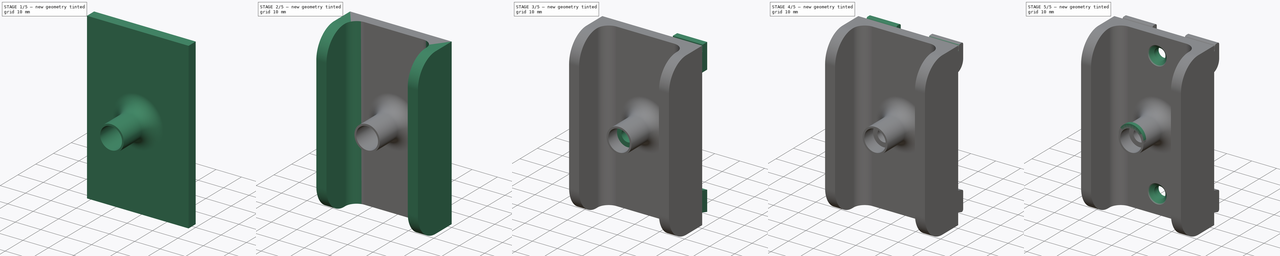
[diagram: build sequence overview — one tinted view per stage of 5, left to right]
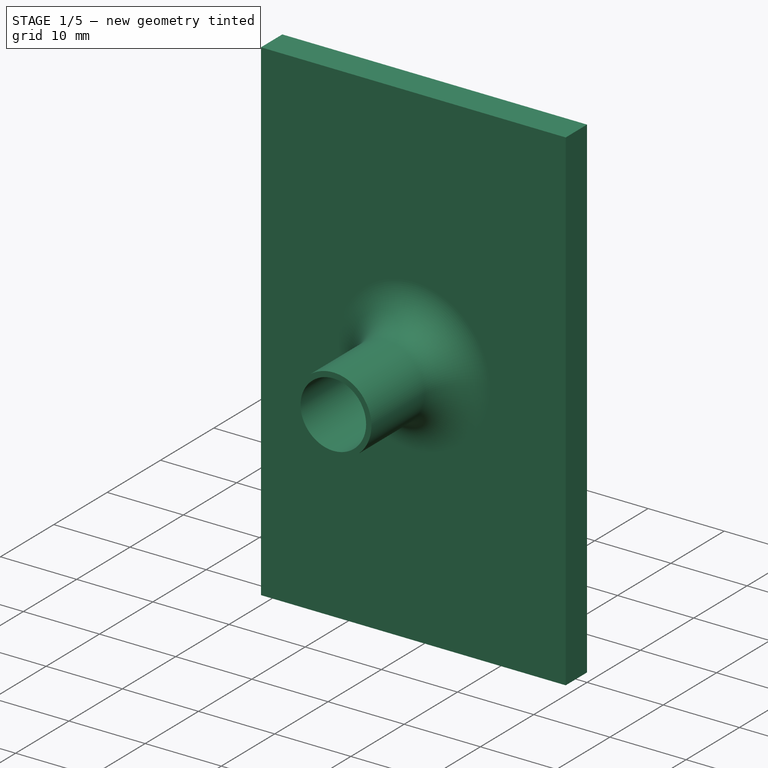
[diagram: stage 1 of 5 — iso view after this stage's code; geometry added in this stage tinted green]
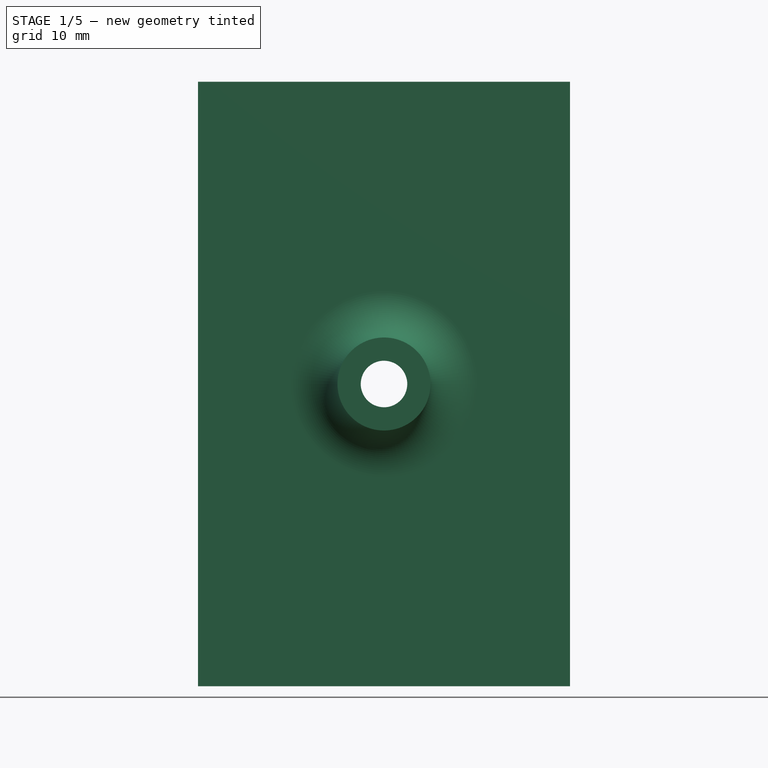
[diagram: stage 1 of 5 — front view after this stage's code; geometry added in this stage tinted green]
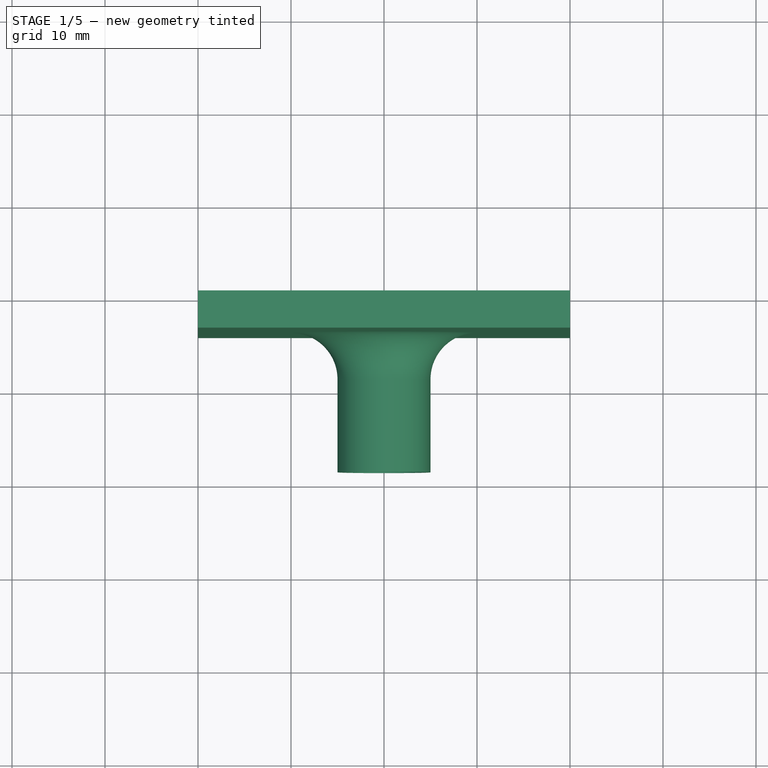
[diagram: stage 1 of 5 — top view after this stage's code; geometry added in this stage tinted green]
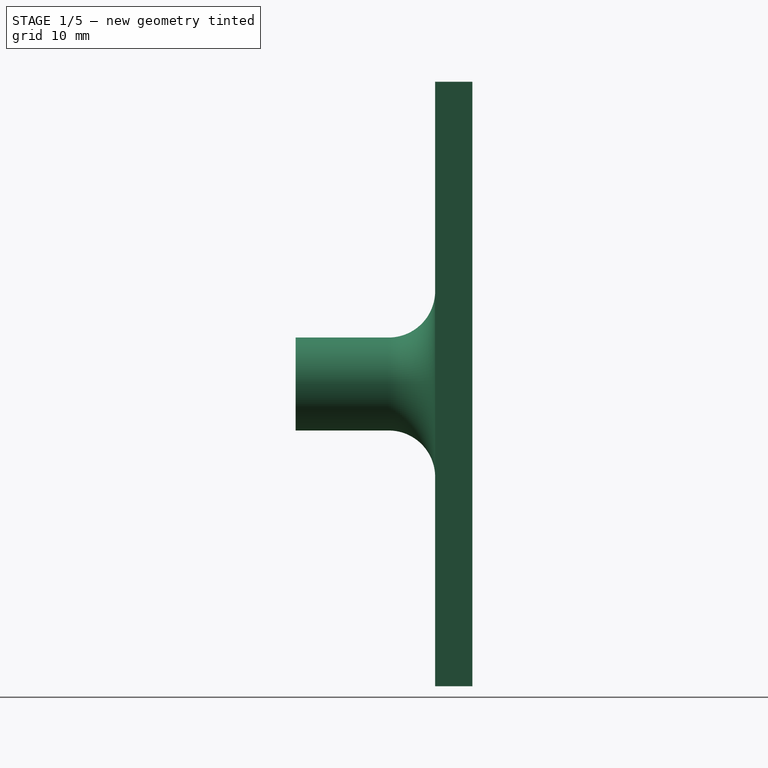
[diagram: stage 1 of 5 — right view after this stage's code; geometry added in this stage tinted green]
FCSTD DOCUMENT  (FreeCAD 1.0R39109 (Git))
Label: PIM_cable_holder
License: All rights reserved
LicenseURL: https://en.wikipedia.org/wiki/All_rights_reserved
objects: Sketcher::SketchObject×9, PartDesign::Pad×9, PartDesign::Fillet×5, PartDesign::Body×2, PartDesign::Mirrored×2, PartDesign::SubShapeBinder×1, PartDesign::Pocket×1, PartDesign::Chamfer×1
note: 73 computed .brp shape members not serialized (recipe doc carries the construction recipe); baked Part::Feature solids carry a one-line shape summary decoded from their .brp

FEATURE [Sketcher::SketchObject] Sketch
  ArcFitTolerance = 1e-06
  AttachmentSupport = -> [XZ_Plane]
  FullyConstrained = true
  MakeInternals = false
  MapMode = 5
  Placement = pos=(0,0,0) rot=(1,0,0;1.5708rad)
  sketch-geometry (54):
    g0: Circle CenterX=0 CenterY=-1e-16 CenterZ=0 NormalX=0 NormalY=0 NormalZ=1 AngleXU=0 Radius=2.25
    g1: Circle CenterX=0 CenterY=-25 CenterZ=0 NormalX=0 NormalY=0 NormalZ=1 AngleXU=0 Radius=2.25
    g2: Circle CenterX=0 CenterY=25 CenterZ=0 NormalX=0 NormalY=0 NormalZ=1 AngleXU=0 Radius=2.25
    g3: LineSegment [constr] StartX=-12.5 StartY=-12.5 StartZ=0 EndX=12.5 EndY=-12.5 EndZ=0
    g4: LineSegment [constr] StartX=12.5 StartY=-12.5 StartZ=0 EndX=12.5 EndY=12.5 EndZ=0
    g5: LineSegment [constr] StartX=12.5 StartY=12.5 StartZ=0 EndX=-12.5 EndY=12.5 EndZ=0
    g6: LineSegment [constr] StartX=-12.5 StartY=12.5 StartZ=0 EndX=-12.5 EndY=-12.5 EndZ=0
    g7: GeomPoint [constr] X=0 Y=-1e-16 Z=0
    g8: LineSegment [constr] StartX=-12.5 StartY=-25 StartZ=0 EndX=12.5 EndY=-25 EndZ=0
    g9: LineSegment [constr] StartX=12.5 StartY=-25 StartZ=0 EndX=12.5 EndY=25 EndZ=0
    g10: LineSegment [constr] StartX=12.5 StartY=25 StartZ=0 EndX=-12.5 EndY=25 EndZ=0
    g11: LineSegment [constr] StartX=-12.5 StartY=25 StartZ=0 EndX=-12.5 EndY=-25 EndZ=0
    g12: GeomPoint [constr] X=0 Y=-1e-16 Z=0
    g13: LineSegment StartX=-19 StartY=20.5 StartZ=0 EndX=-6 EndY=20.5 EndZ=0
    g14: LineSegment StartX=-6 StartY=20.5 StartZ=0 EndX=-6 EndY=29.5 EndZ=0
    g15: LineSegment StartX=-6 StartY=29.5 StartZ=0 EndX=-19 EndY=29.5 EndZ=0
    g16: LineSegment StartX=-19 StartY=29.5 StartZ=0 EndX=-19 EndY=20.5 EndZ=0
    g17: GeomPoint [constr] X=-12.5 Y=25 Z=0
    g18: LineSegment StartX=-19 StartY=-29.5 StartZ=0 EndX=-6 EndY=-29.5 EndZ=0
    g19: LineSegment StartX=-6 StartY=-29.5 StartZ=0 EndX=-6 EndY=-20.5 EndZ=0
    g20: LineSegment StartX=-6 StartY=-20.5 StartZ=0 EndX=-19 EndY=-20.5 EndZ=0
    g21: LineSegment StartX=-19 StartY=-20.5 StartZ=0 EndX=-19 EndY=-29.5 EndZ=0
    g22: GeomPoint [constr] X=-12.5 Y=-25 Z=0
    g23: LineSegment StartX=6 StartY=-29.5 StartZ=0 EndX=19 EndY=-29.5 EndZ=0
    g24: LineSegment StartX=19 StartY=-29.5 StartZ=0 EndX=19 EndY=-20.5 EndZ=0
    g25: LineSegment StartX=19 StartY=-20.5 StartZ=0 EndX=6 EndY=-20.5 EndZ=0
    g26: LineSegment StartX=6 StartY=-20.5 StartZ=0 EndX=6 EndY=-29.5 EndZ=0
    g27: GeomPoint [constr] X=12.5 Y=-25 Z=0
    g28: LineSegment StartX=6 StartY=29.5 StartZ=0 EndX=6 EndY=20.5 EndZ=0
    g29: LineSegment StartX=6 StartY=20.5 StartZ=0 EndX=19 EndY=20.5 EndZ=0
    g30: LineSegment StartX=19 StartY=20.5 StartZ=0 EndX=19 EndY=29.5 EndZ=0
    g31: LineSegment StartX=19 StartY=29.5 StartZ=0 EndX=6 EndY=29.5 EndZ=0
    g32: GeomPoint [constr] X=12.5 Y=25 Z=0
    g33: GeomPoint X=-12.5 Y=0 Z=0
    g34: GeomPoint X=12.5 Y=0 Z=0
    g35: LineSegment StartX=-17 StartY=6.5 StartZ=0 EndX=-17 EndY=-6.5 EndZ=0
    g36: LineSegment StartX=-17 StartY=-6.5 StartZ=0 EndX=-8 EndY=-6.5 EndZ=0
    g37: LineSegment StartX=-8 StartY=-6.5 StartZ=0 EndX=-8 EndY=6.5 EndZ=0
    g38: LineSegment StartX=-8 StartY=6.5 StartZ=0 EndX=-17 EndY=6.5 EndZ=0
    g39: GeomPoint [constr] X=-12.5 Y=0 Z=0
    g40: LineSegment StartX=8 StartY=6.5 StartZ=0 EndX=8 EndY=-6.5 EndZ=0
    g41: LineSegment StartX=8 StartY=-6.5 StartZ=0 EndX=17 EndY=-6.5 EndZ=0
    g42: LineSegment StartX=17 StartY=-6.5 StartZ=0 EndX=17 EndY=6.5 EndZ=0
    g43: LineSegment StartX=17 StartY=6.5 StartZ=0 EndX=8 EndY=6.5 EndZ=0
    g44: GeomPoint [constr] X=12.5 Y=0 Z=0
    g45: Circle CenterX=-12.5 CenterY=12.5 CenterZ=0 NormalX=0 NormalY=0 NormalZ=1 AngleXU=0 Radius=2.25
    g46: Circle CenterX=12.5 CenterY=12.5 CenterZ=0 NormalX=0 NormalY=0 NormalZ=1 AngleXU=0 Radius=2.25
    g47: Circle CenterX=12.5 CenterY=-12.5 CenterZ=0 NormalX=0 NormalY=0 NormalZ=1 AngleXU=0 Radius=2.25
    g48: Circle CenterX=-12.5 CenterY=-12.5 CenterZ=0 NormalX=0 NormalY=0 NormalZ=1 AngleXU=0 Radius=2.25
    g49: LineSegment StartX=-75 StartY=-35 StartZ=0 EndX=75 EndY=-35 EndZ=0
    g50: LineSegment StartX=75 StartY=-35 StartZ=0 EndX=75 EndY=35 EndZ=0
    g51: LineSegment StartX=75 StartY=35 StartZ=0 EndX=-75 EndY=35 EndZ=0
    g52: LineSegment StartX=-75 StartY=35 StartZ=0 EndX=-75 EndY=-35 EndZ=0
    g53: GeomPoint [constr] X=0 Y=-1e-16 Z=0
  constraints (128):
    c: Diameter(g0) = 4.5
    c: Coincident(g0,g-1)
    c: PointOnObject(g1,g-2)
    c: PointOnObject(g2,g-2)
    c: Coincident(g3,g4)
    c: Coincident(g4,g5)
    c: Coincident(g5,g6)
    c: Coincident(g6,g3)
    c: Horizontal(g3)
    c: Horizontal(g5)
    c: Vertical(g4)
    c: Vertical(g6)
    c: Symmetric(g5,g3,g7)
    c: Coincident(g7,g0)
    c: Coincident(g8,g9)
    c: Coincident(g9,g10)
    c: Coincident(g10,g11)
    c: Coincident(g11,g8)
    c: Horizontal(g8)
    c: Horizontal(g10)
    c: Vertical(g9)
    c: Vertical(g11)
    c: Symmetric(g10,g8,g12)
    c: Coincident(g12,g0)
    c: Coincident(g13,g14)
    c: Coincident(g14,g15)
    c: Coincident(g15,g16)
    c: Coincident(g16,g13)
    c: Horizontal(g13)
    c: Horizontal(g15)
    c: Vertical(g14)
    c: Vertical(g16)
    c: Symmetric(g15,g13,g17)
    c: Distance(g14,g16) = 13
    c: Distance(g13,g15) = 9
    c: Coincident(g17,g10)
    c: Coincident(g18,g19)
    c: Coincident(g19,g20)
    c: Coincident(g20,g21)
    c: Coincident(g21,g18)
    c: Horizontal(g18)
    c: Horizontal(g20)
    c: Vertical(g19)
    c: Vertical(g21)
    c: Symmetric(g20,g18,g22)
    c: Coincident(g22,g8)
    c: Coincident(g23,g24)
    c: Coincident(g24,g25)
    c: Coincident(g25,g26)
    c: Coincident(g26,g23)
    c: Horizontal(g23)
    c: Horizontal(g25)
    c: Vertical(g24)
    c: Vertical(g26)
    c: Symmetric(g25,g23,g27)
    c: Coincident(g27,g8)
    c: Coincident(g28,g29)
    c: Coincident(g29,g30)
    c: Coincident(g30,g31)
    c: Coincident(g31,g28)
    c: Vertical(g28)
    c: Vertical(g30)
    c: Horizontal(g29)
    c: Horizontal(g31)
    c: Symmetric(g30,g28,g32)
    c: Coincident(g32,g9)
    c: PointOnObject(g33,g11)
    c: PointOnObject(g34,g9)
    c: PointOnObject(g34,g-1)
    c: PointOnObject(g33,g-1)
    c: Coincident(g35,g36)
    c: Coincident(g36,g37)
    c: Coincident(g37,g38)
    c: Coincident(g38,g35)
    c: Vertical(g35)
    c: Vertical(g37)
    c: Horizontal(g36)
    c: Horizontal(g38)
    c: Symmetric(g37,g35,g39)
    c: Coincident(g39,g33)
    c: Coincident(g40,g41)
    c: Coincident(g41,g42)
    c: Coincident(g42,g43)
    c: Coincident(g43,g40)
    c: Vertical(g40)
    c: Vertical(g42)
    c: Horizontal(g41)
    c: Horizontal(g43)
    c: Symmetric(g42,g40,g44)
    c: Coincident(g44,g34)
    c: PointOnObject(g5,g11)
    c: PointOnObject(g1,g8)
    c: PointOnObject(g2,g10)
    c: Coincident(g45,g5)
    c: Coincident(g46,g4)
    c: Coincident(g47,g3)
    c: Coincident(g48,g3)
    c: Equal(g1,g48)
    c: Equal(g48,g45)
    c: Equal(g45,g46)
    c: Equal(g46,g47)
    c: Equal(g47,g2)
    c: Equal(g2,g0)
    c: Equal(g15,g31)
    c: Equal(g31,g25)
    c: Equal(g25,g20)
    c: Equal(g20,g37)
    c: Equal(g37,g40)
    c: Equal(g16,g38)
    c: Equal(g38,g21)
    c: Equal(g21,g26)
    c: Equal(g26,g41)
    c: Equal(g41,g30)
    c: DistanceY(g18,g15) = 59
    c: DistanceX(g15,g30) = 38
    c: DistanceY(g3,g4) = 25
    c: Coincident(g49,g50)
    c: Coincident(g50,g51)
    c: Coincident(g51,g52)
    c: Coincident(g52,g49)
    c: Horizontal(g49)
    c: Horizontal(g51)
    c: Vertical(g50)
    c: Vertical(g52)
    c: Symmetric(g51,g49,g53)
    c: Distance(g50,g52) = 150
    c: Distance(g49,g51) = 70
    c: Coincident(g53,g0)
FEATURE [PartDesign::Pad] Pad
  Direction = (0,-1,2e-16)
  Length = 2
  Length2 = 10
  Placement = pos=(0,0,0) rot=(1,0,0;1.5708rad)
  Profile = -> Sketch
  ReferenceAxis = -> Sketch [N_Axis]
  Refine = true
  Reversed = true
  Suppressed = false
  Type = 0
FEATURE [PartDesign::Body] Body  label="baseplate"
  AllowCompound = false
  Group = -> [Sketch,Pad]
  Origin = -> Origin
  Tip = -> Pad
FEATURE [PartDesign::SubShapeBinder] Binder
  BindCopyOnChange = 0
  BindMode = 0
  ClaimChildren = false
  Context = -> Body001 [Binder.]
  Fuse = false
  MakeFace = true
  OffsetFill = false
  OffsetIntersection = false
  OffsetJoinType = 0
  OffsetOpenResult = false
  PartialLoad = false
  Refine = true
  Relative = true
  Support = -> [Body[Pad.Face36]]
  _Version = 2
FEATURE [Sketcher::SketchObject] Sketch001
  ArcFitTolerance = 1e-06
  AttachmentSupport = -> [Binder]
  ExternalGeometry = -> [Binder]
  FullyConstrained = true
  MakeInternals = false
  MapMode = 5
  Placement = pos=(0,0,0) rot=(1,0,0;1.5708rad)
  sketch-geometry (6):
    g0: LineSegment StartX=-20 StartY=-32.5 StartZ=0 EndX=20 EndY=-32.5 EndZ=0
    g1: LineSegment StartX=20 StartY=-32.5 StartZ=0 EndX=20 EndY=32.5 EndZ=0
    g2: LineSegment StartX=20 StartY=32.5 StartZ=0 EndX=-20 EndY=32.5 EndZ=0
    g3: LineSegment StartX=-20 StartY=32.5 StartZ=0 EndX=-20 EndY=-32.5 EndZ=0
    g4: GeomPoint [constr] X=0 Y=0 Z=0
    g5: Circle CenterX=0 CenterY=0 CenterZ=0 NormalX=0 NormalY=0 NormalZ=1 AngleXU=0 Radius=2.5
  constraints (14):
    c: Coincident(g0,g1)
    c: Coincident(g1,g2)
    c: Coincident(g2,g3)
    c: Coincident(g3,g0)
    c: Horizontal(g0)
    c: Horizontal(g2)
    c: Vertical(g1)
    c: Vertical(g3)
    c: Symmetric(g2,g0,g4)
    c: Distance(g1,g3) = 40
    c: Distance(g0,g2) = 65
    c: Coincident(g4,g-1)
    c: Diameter(g5) = 5
    c: Coincident(g5,g4)
FEATURE [PartDesign::Pad] Pad001
  Direction = (0,-1,2e-16)
  Length = 4
  Length2 = 10
  Profile = -> Sketch001
  ReferenceAxis = -> Sketch001 [N_Axis]
  Refine = true
  Suppressed = false
  Type = 0
FEATURE [Sketcher::SketchObject] Sketch003
  ArcFitTolerance = 1e-06
  AttachmentSupport = -> [Pad001]
  FullyConstrained = true
  MakeInternals = false
  MapMode = 5
  Placement = pos=(0,-4,0) rot=(1,0,0;1.5708rad)
  sketch-geometry (2):
    g0: Circle CenterX=0 CenterY=0 CenterZ=0 NormalX=0 NormalY=0 NormalZ=1 AngleXU=0 Radius=4.3
    g1: Circle CenterX=0 CenterY=0 CenterZ=0 NormalX=0 NormalY=0 NormalZ=1 AngleXU=0 Radius=5
  constraints (4):
    c: Diameter(g0) = 8.6
    c: Coincident(g0,g-1)
    c: Diameter(g1) = 10
    c: Coincident(g1,g0)
FEATURE [PartDesign::Pad] Pad002
  BaseFeature = -> Pad001
  Direction = (0,-1,2e-16)
  Length = 15
  Length2 = 10
  Profile = -> Sketch003
  ReferenceAxis = -> Sketch003 [N_Axis]
  Refine = true
  Suppressed = false
  Type = 0
FEATURE [PartDesign::Fillet] Fillet
  Base = -> Pad002 [Edge14]
  BaseFeature = -> Pad002
  Radius = 5
  Refine = true
  SupportTransform = false
  Suppressed = false
  UseAllEdges = false
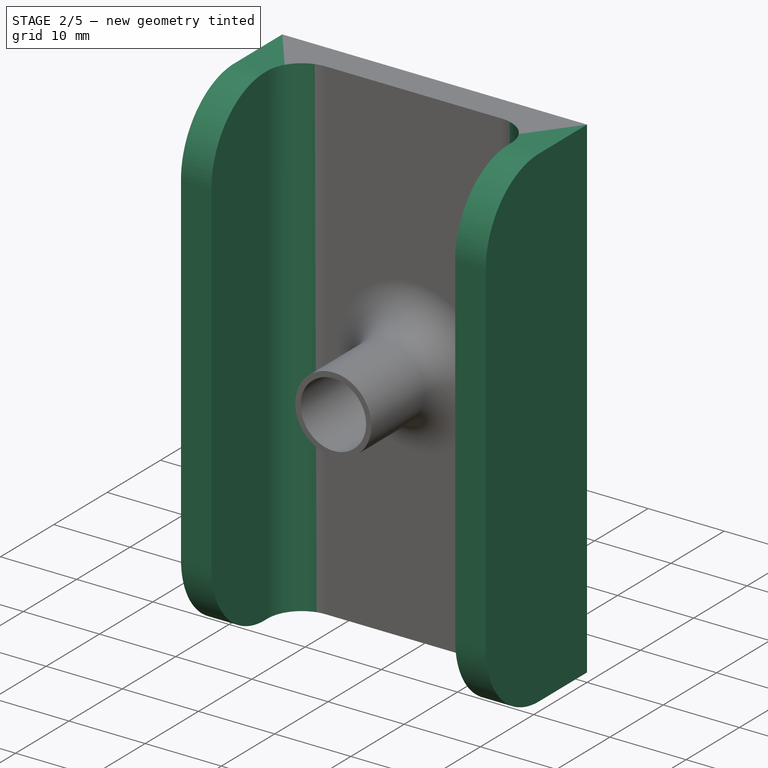
[diagram: stage 2 of 5 — iso view after this stage's code; geometry added in this stage tinted green]
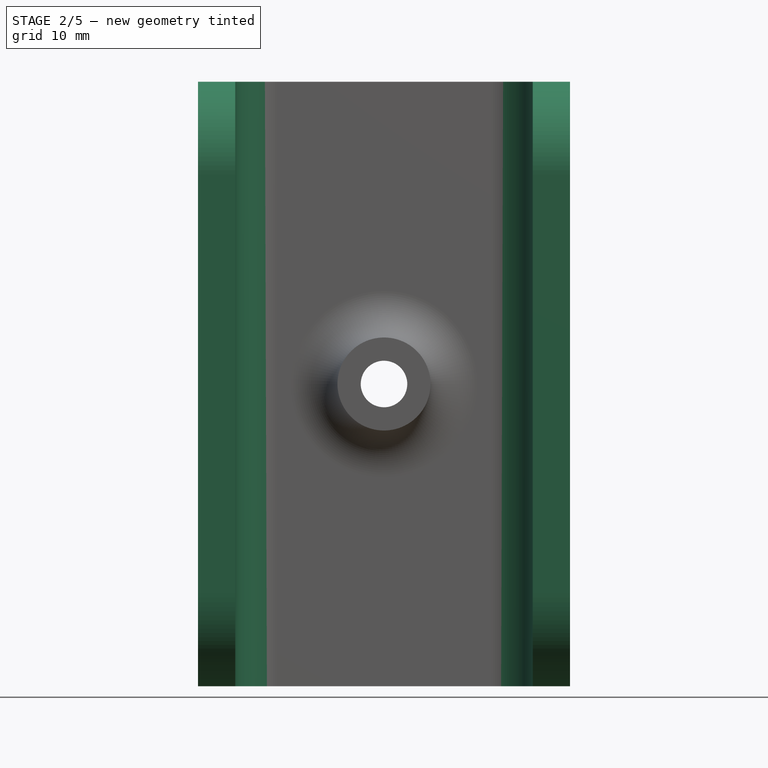
[diagram: stage 2 of 5 — front view after this stage's code; geometry added in this stage tinted green]
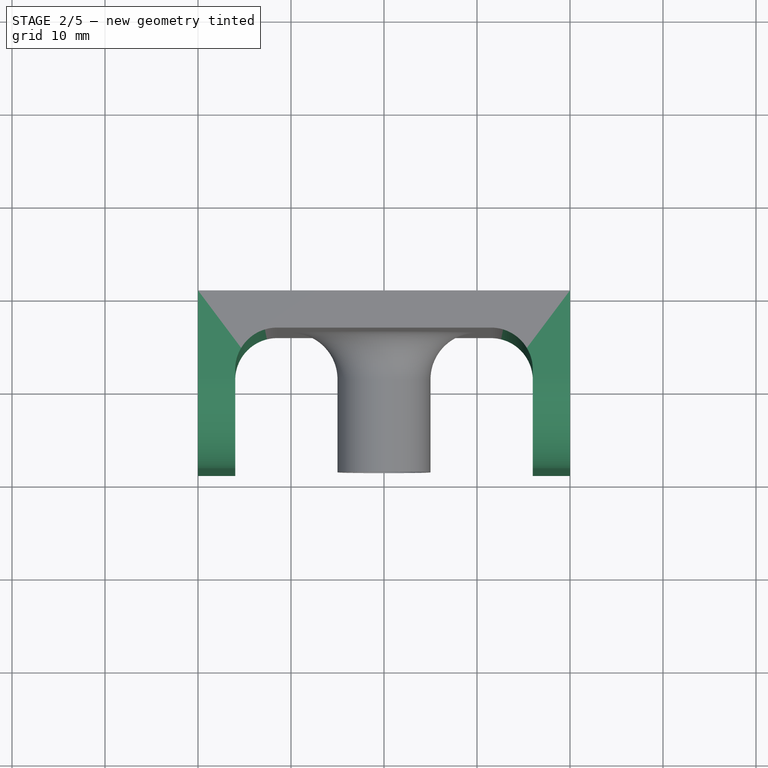
[diagram: stage 2 of 5 — top view after this stage's code; geometry added in this stage tinted green]
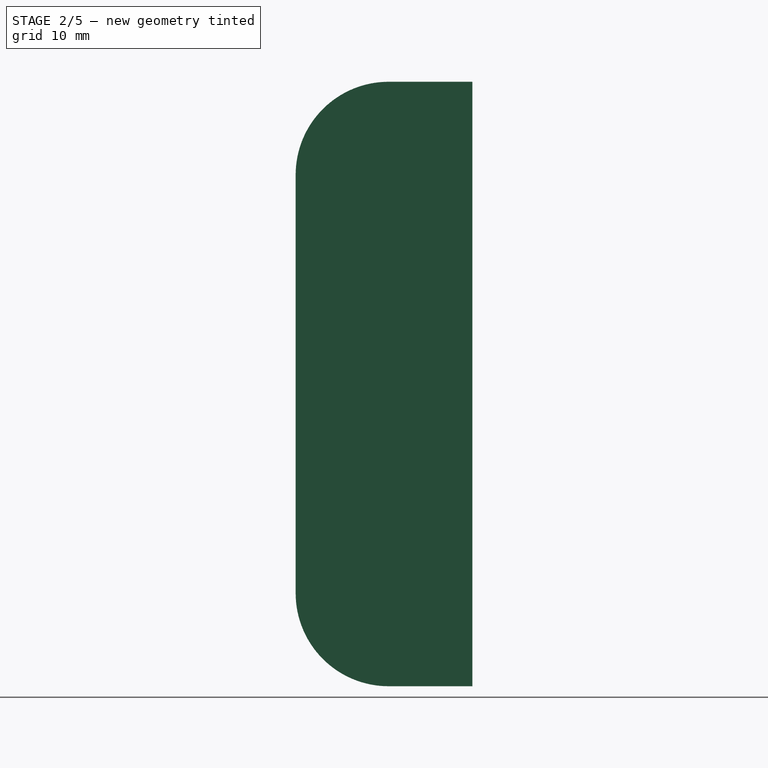
[diagram: stage 2 of 5 — right view after this stage's code; geometry added in this stage tinted green]
FEATURE [Sketcher::SketchObject] Sketch004
  ArcFitTolerance = 1e-06
  AttachmentSupport = -> [Fillet]
  ExternalGeometry = -> [Fillet]
  FullyConstrained = true
  MakeInternals = false
  MapMode = 5
  Placement = pos=(0,-4,0) rot=(1,0,0;1.5708rad)
  sketch-geometry (8):
    g0: LineSegment StartX=-20 StartY=32.5 StartZ=0 EndX=-20 EndY=-32.5 EndZ=0
    g1: LineSegment StartX=-20 StartY=-32.5 StartZ=0 EndX=-16 EndY=-32.5 EndZ=0
    g2: LineSegment StartX=-16 StartY=-32.5 StartZ=0 EndX=-16 EndY=32.5 EndZ=0
    g3: LineSegment StartX=-16 StartY=32.5 StartZ=0 EndX=-20 EndY=32.5 EndZ=0
    g4: LineSegment StartX=20 StartY=32.5 StartZ=0 EndX=16 EndY=32.5 EndZ=0
    g5: LineSegment StartX=16 StartY=32.5 StartZ=0 EndX=16 EndY=-32.5 EndZ=0
    g6: LineSegment StartX=16 StartY=-32.5 StartZ=0 EndX=20 EndY=-32.5 EndZ=0
    g7: LineSegment StartX=20 StartY=-32.5 StartZ=0 EndX=20 EndY=32.5 EndZ=0
  constraints (22):
    c: Coincident(g0,g1)
    c: Coincident(g1,g2)
    c: Coincident(g2,g3)
    c: Coincident(g3,g0)
    c: Vertical(g0)
    c: Vertical(g2)
    c: Horizontal(g1)
    c: Horizontal(g3)
    c: Coincident(g0,g-3)
    c: PointOnObject(g1,g-4)
    c: Coincident(g4,g5)
    c: Coincident(g5,g6)
    c: Coincident(g6,g7)
    c: Coincident(g7,g4)
    c: Horizontal(g4)
    c: Horizontal(g6)
    c: Vertical(g5)
    c: Vertical(g7)
    c: Coincident(g4,g-5)
    c: PointOnObject(g5,g-4)
    c: Equal(g4,g3)
    c: DistanceX(g2,g4) = 32
FEATURE [PartDesign::Pad] Pad003
  BaseFeature = -> Fillet
  Direction = (0,-1,2e-16)
  Length = 15
  Length2 = 10
  Profile = -> Sketch004
  ReferenceAxis = -> Sketch004 [N_Axis]
  Refine = true
  Suppressed = false
  Type = 0
FEATURE [PartDesign::Fillet] Fillet001
  Base = -> Pad003 [Edge14,Edge12]
  BaseFeature = -> Pad003
  Radius = 4.5
  Refine = true
  SupportTransform = false
  Suppressed = false
  UseAllEdges = false
FEATURE [PartDesign::Fillet] Fillet002
  Base = -> Fillet001 [Edge20,Edge25,Edge8,Edge14]
  BaseFeature = -> Fillet001
  Radius = 10
  Refine = true
  SupportTransform = false
  Suppressed = false
  UseAllEdges = false
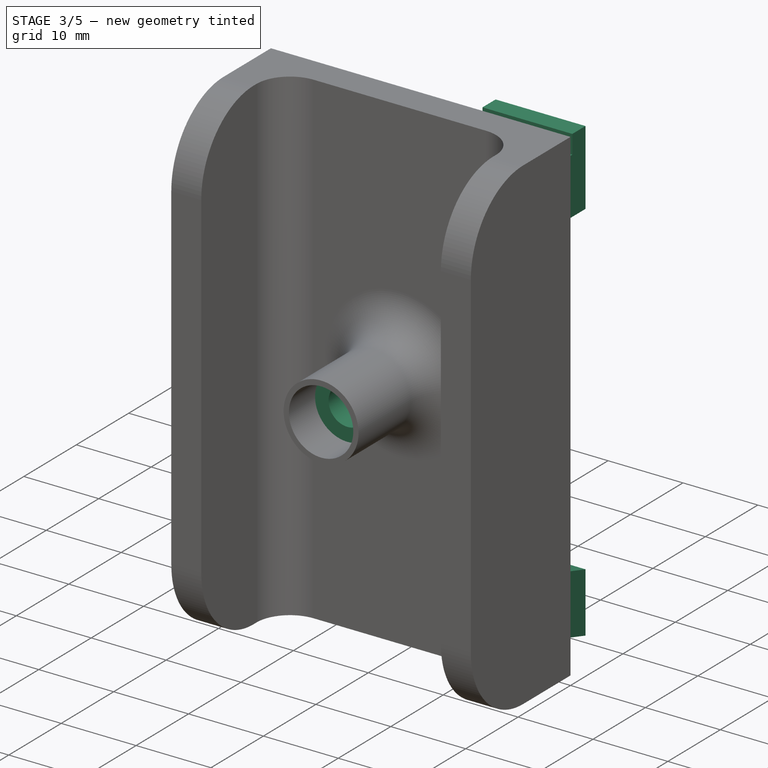
[diagram: stage 3 of 5 — iso view after this stage's code; geometry added in this stage tinted green]
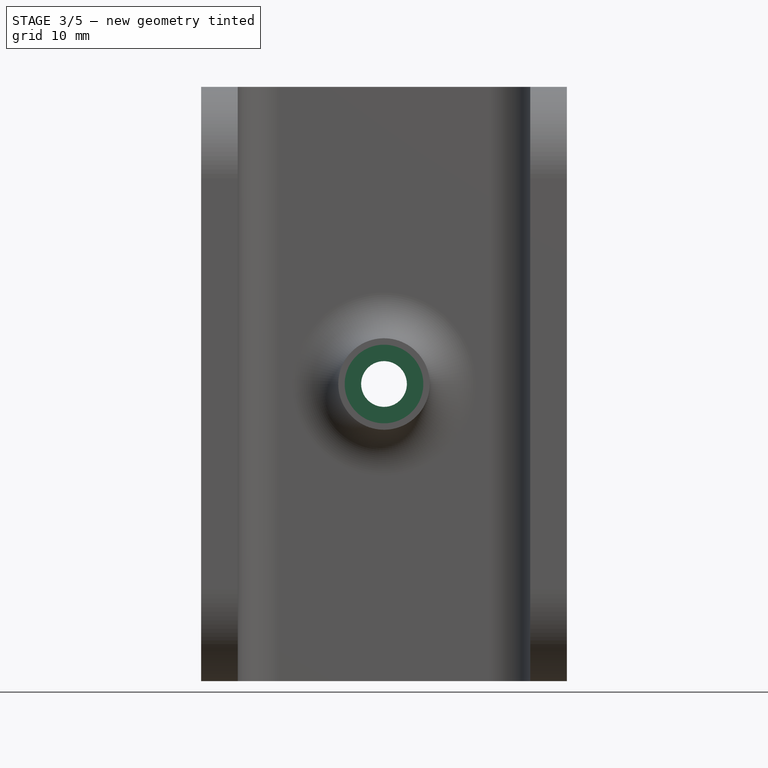
[diagram: stage 3 of 5 — front view after this stage's code; geometry added in this stage tinted green]
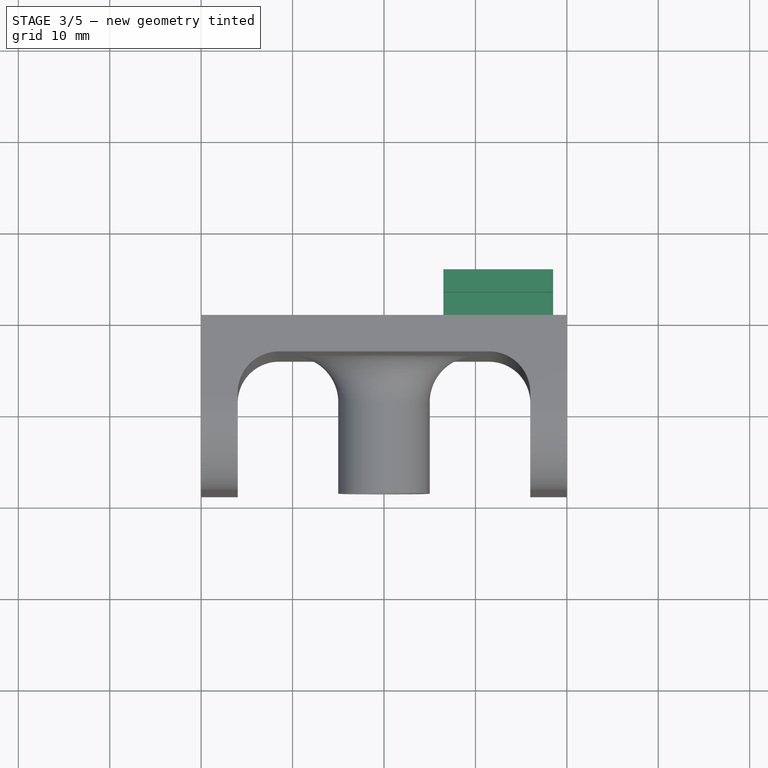
[diagram: stage 3 of 5 — top view after this stage's code; geometry added in this stage tinted green]
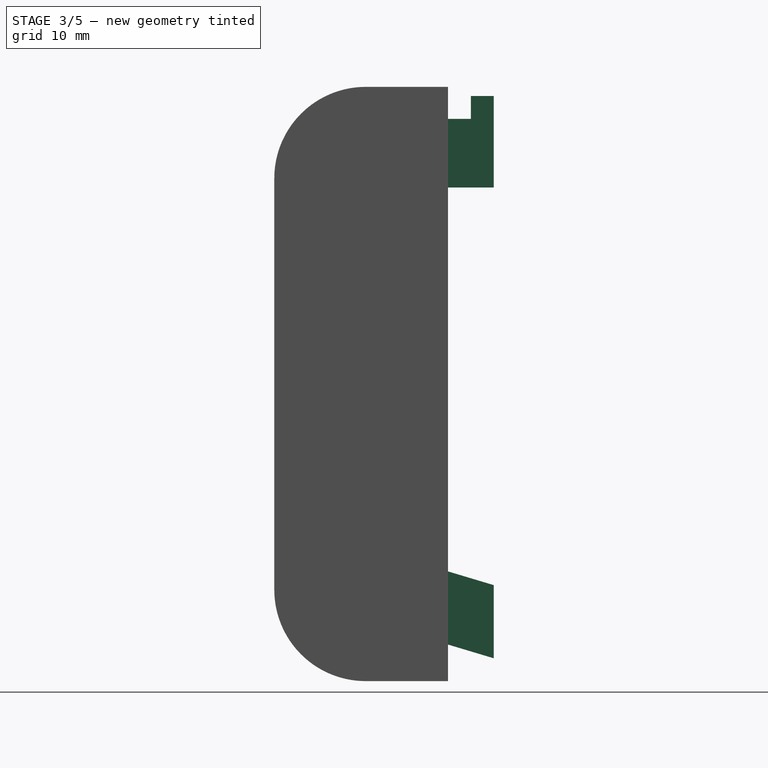
[diagram: stage 3 of 5 — right view after this stage's code; geometry added in this stage tinted green]
FEATURE [PartDesign::Pad] Pad004
  BaseFeature = -> Fillet002
  Direction = (0,-1,0)
  Length = 10
  Length2 = 10
  Profile = -> Fillet002 [Face20]
  Refine = true
  Suppressed = false
  Type = 0
FEATURE [Sketcher::SketchObject] Sketch005
  ArcFitTolerance = 1e-06
  ExternalGeometry = -> [Binder]
  FullyConstrained = true
  MakeInternals = false
  MapMode = 5
  Placement = pos=(0,0,0) rot=(0,0.707107,0.707107;3.14159rad)
  sketch-geometry (8):
    g0: LineSegment [constr] StartX=-6 StartY=-20.5 StartZ=0 EndX=-19 EndY=-20.5 EndZ=0
    g1: LineSegment [constr] StartX=-19 StartY=-20.5 StartZ=0 EndX=-19 EndY=-29.5 EndZ=0
    g2: LineSegment [constr] StartX=-19 StartY=-29.5 StartZ=0 EndX=-6 EndY=-29.5 EndZ=0
    g3: LineSegment [constr] StartX=-6 StartY=-29.5 StartZ=0 EndX=-6 EndY=-20.5 EndZ=0
    g4: LineSegment StartX=-6.5 StartY=-20.5 StartZ=0 EndX=-18.5 EndY=-20.5 EndZ=0
    g5: LineSegment StartX=-18.5 StartY=-20.5 StartZ=0 EndX=-18.5 EndY=-28.5 EndZ=0
    g6: LineSegment StartX=-18.5 StartY=-28.5 StartZ=0 EndX=-6.5 EndY=-28.5 EndZ=0
    g7: LineSegment StartX=-6.5 StartY=-28.5 StartZ=0 EndX=-6.5 EndY=-20.5 EndZ=0
  constraints (22):
    c: Coincident(g0,g1)
    c: Coincident(g1,g2)
    c: Coincident(g2,g3)
    c: Coincident(g3,g0)
    c: Horizontal(g0)
    c: Horizontal(g2)
    c: Vertical(g1)
    c: Vertical(g3)
    c: Coincident(g0,g-7)
    c: Coincident(g1,g-8)
    c: Coincident(g4,g5)
    c: Coincident(g5,g6)
    c: Coincident(g6,g7)
    c: Coincident(g7,g4)
    c: Horizontal(g4)
    c: Horizontal(g6)
    c: Vertical(g5)
    c: Vertical(g7)
    c: Distance(g4,g3) = 0.5
    c: Distance(g4,g1) = 0.5
    c: PointOnObject(g4,g0)
    c: Distance(g6,g2) = 1
FEATURE [PartDesign::Pad] Pad005
  BaseFeature = -> Pad004
  Direction = (0,1,-0.3)
  Length = 5
  Length2 = 10
  Profile = -> Sketch005
  ReferenceAxis = -> Sketch005 [N_Axis]
  Refine = true
  Suppressed = false
  Type = 0
  UseCustomVector = true
FEATURE [Sketcher::SketchObject] Sketch006
  ArcFitTolerance = 1e-06
  AttachmentSupport = -> [Pad005]
  ExternalGeometry = -> [Binder]
  FullyConstrained = true
  MakeInternals = false
  MapMode = 5
  Placement = pos=(0,0,0) rot=(0,0.707107,0.707107;3.14159rad)
  sketch-geometry (8):
    g0: LineSegment [constr] StartX=-6 StartY=20.5 StartZ=0 EndX=-6 EndY=29.5 EndZ=0
    g1: LineSegment [constr] StartX=-6 StartY=29.5 StartZ=0 EndX=-19 EndY=29.5 EndZ=0
    g2: LineSegment [constr] StartX=-19 StartY=29.5 StartZ=0 EndX=-19 EndY=20.5 EndZ=0
    g3: LineSegment [constr] StartX=-19 StartY=20.5 StartZ=0 EndX=-6 EndY=20.5 EndZ=0
    g4: LineSegment StartX=-6.5 StartY=21.5 StartZ=0 EndX=-6.5 EndY=29 EndZ=0
    g5: LineSegment StartX=-6.5 StartY=29 StartZ=0 EndX=-18.5 EndY=29 EndZ=0
    g6: LineSegment StartX=-18.5 StartY=29 StartZ=0 EndX=-18.5 EndY=21.5 EndZ=0
    g7: LineSegment StartX=-18.5 StartY=21.5 StartZ=0 EndX=-6.5 EndY=21.5 EndZ=0
  constraints (22):
    c: Coincident(g0,g1)
    c: Coincident(g1,g2)
    c: Coincident(g2,g3)
    c: Coincident(g3,g0)
    c: Vertical(g0)
    c: Vertical(g2)
    c: Horizontal(g1)
    c: Horizontal(g3)
    c: Coincident(g0,g-3)
    c: Coincident(g1,g-4)
    c: Coincident(g4,g5)
    c: Coincident(g5,g6)
    c: Coincident(g6,g7)
    c: Coincident(g7,g4)
    c: Vertical(g4)
    c: Vertical(g6)
    c: Horizontal(g5)
    c: Horizontal(g7)
    c: DistanceX(g4,g0) = 0.5
    c: DistanceX(g1,g5) = 0.5
    c: DistanceY(g5,g1) = 0.5
    c: DistanceY(g2,g6) = 1
FEATURE [PartDesign::Pad] Pad006
  BaseFeature = -> Pad005
  Direction = (0,1,-2e-16)
  Length = 5
  Length2 = 10
  Profile = -> Sketch006
  ReferenceAxis = -> Sketch006 [N_Axis]
  Refine = true
  Suppressed = false
  Type = 0
FEATURE [Sketcher::SketchObject] Sketch007
  ArcFitTolerance = 1e-06
  AttachmentSupport = -> [Pad006]
  ExternalGeometry = -> [Pad006]
  FullyConstrained = true
  MakeInternals = false
  MapMode = 5
  Placement = pos=(0,6.4e-15,29) rot=(0,0,1;0rad)
  sketch-geometry (4):
    g0: LineSegment StartX=6.5 StartY=5 StartZ=0 EndX=6.5 EndY=2.5 EndZ=0
    g1: LineSegment StartX=6.5 StartY=2.5 StartZ=0 EndX=18.5 EndY=2.5 EndZ=0
    g2: LineSegment StartX=18.5 StartY=2.5 StartZ=0 EndX=18.5 EndY=5 EndZ=0
    g3: LineSegment StartX=18.5 StartY=5 StartZ=0 EndX=6.5 EndY=5 EndZ=0
  constraints (11):
    c: Coincident(g0,g1)
    c: Coincident(g1,g2)
    c: Coincident(g2,g3)
    c: Coincident(g3,g0)
    c: Vertical(g0)
    c: Vertical(g2)
    c: Horizontal(g1)
    c: Horizontal(g3)
    c: Coincident(g0,g-3)
    c: PointOnObject(g-3,g2)
    c: DistanceY(g-4,g1) = 2.5
FEATURE [PartDesign::Pad] Pad007
  BaseFeature = -> Pad006
  Direction = (0,0,1)
  Length = 2.5
  Length2 = 10
  Profile = -> Sketch007
  ReferenceAxis = -> Sketch007 [N_Axis]
  Refine = true
  Suppressed = false
  Type = 0
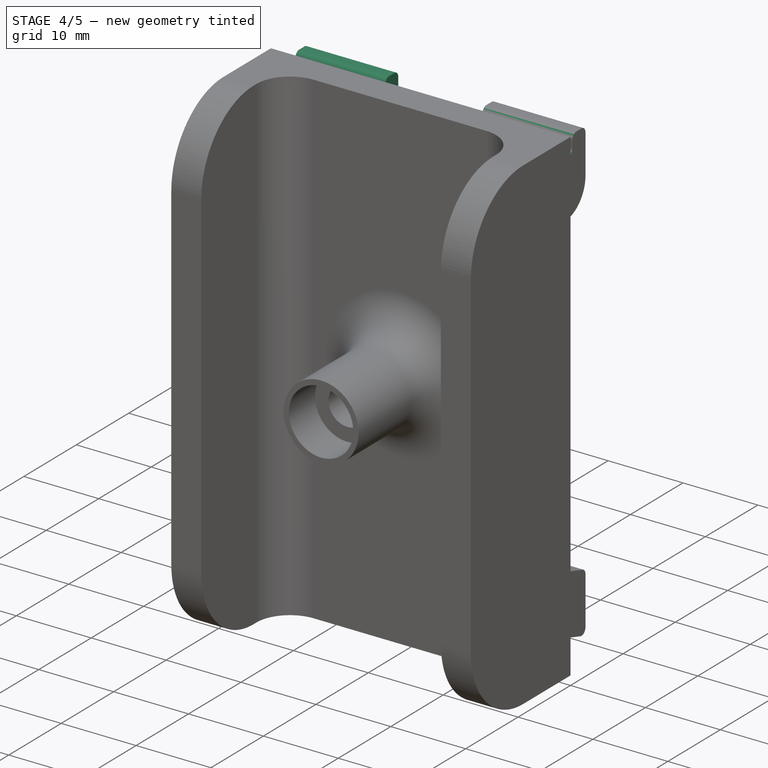
[diagram: stage 4 of 5 — iso view after this stage's code; geometry added in this stage tinted green]
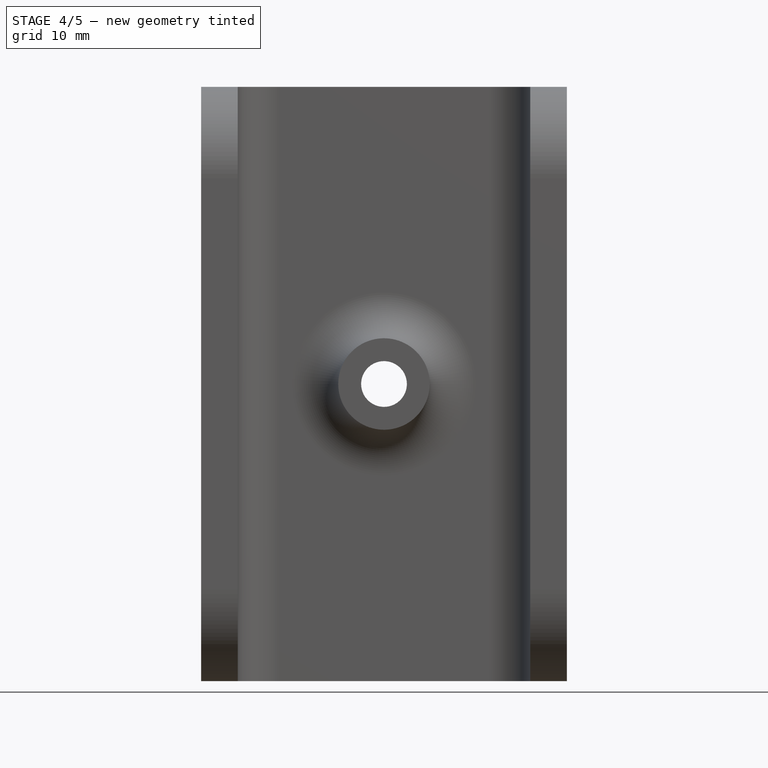
[diagram: stage 4 of 5 — front view after this stage's code; geometry added in this stage tinted green]
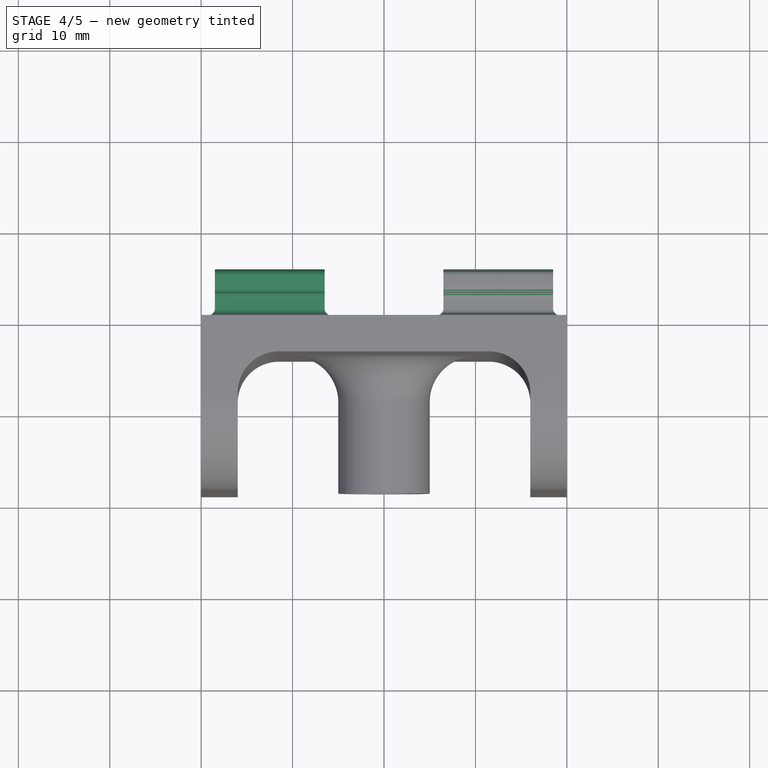
[diagram: stage 4 of 5 — top view after this stage's code; geometry added in this stage tinted green]
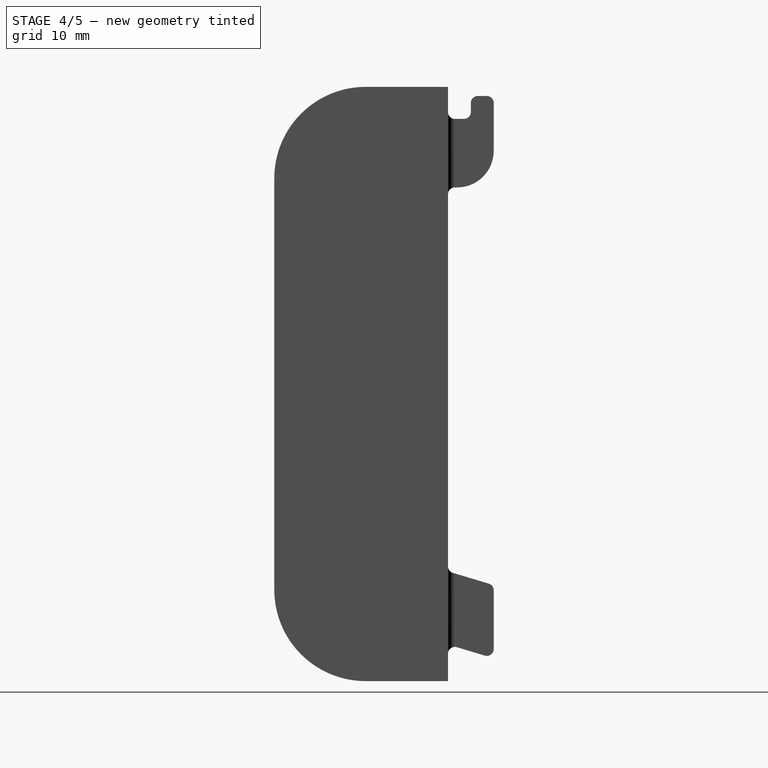
[diagram: stage 4 of 5 — right view after this stage's code; geometry added in this stage tinted green]
FEATURE [PartDesign::Fillet] Fillet005
  Base = -> Pad007 [Edge59]
  BaseFeature = -> Pad007
  Radius = 4
  Refine = true
  SupportTransform = false
  Suppressed = false
  UseAllEdges = false
FEATURE [PartDesign::Fillet] Fillet006
  Base = -> Fillet005 [Edge29,Edge30,Edge28,Edge23,Edge59,Edge18,Edge21,Edge64,Edge22,Edge19,Edge6,Edge20,Edge3]
  BaseFeature = -> Fillet005
  Radius = 0.75
  Refine = true
  SupportTransform = false
  Suppressed = false
  UseAllEdges = false
FEATURE [PartDesign::Mirrored] Mirrored
  BaseFeature = -> Fillet006
  MirrorPlane = -> YZ_Plane001
  Refine = true
  Suppressed = false
  TransformMode = 1
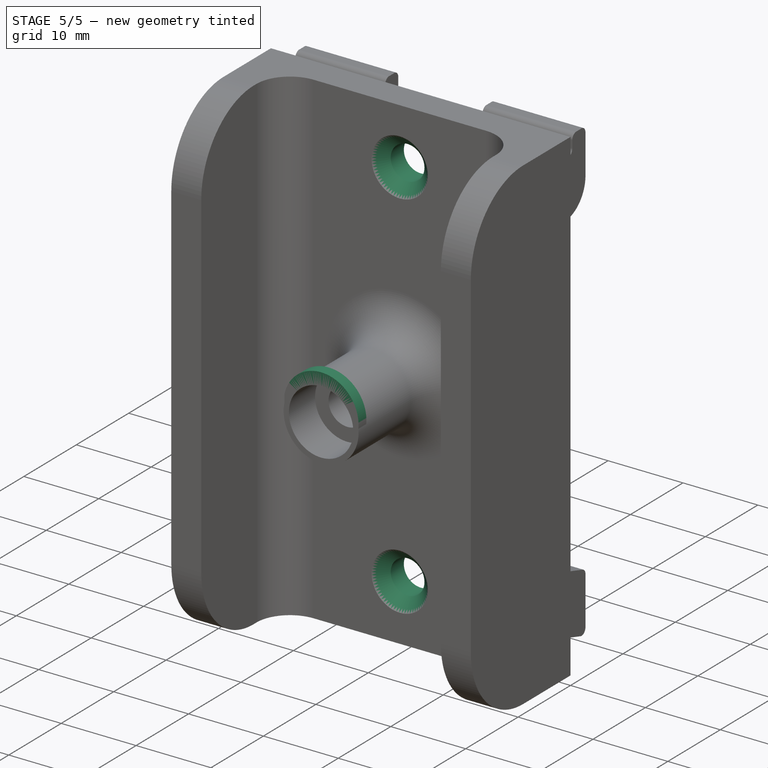
[diagram: stage 5 of 5 — iso view after this stage's code; geometry added in this stage tinted green]
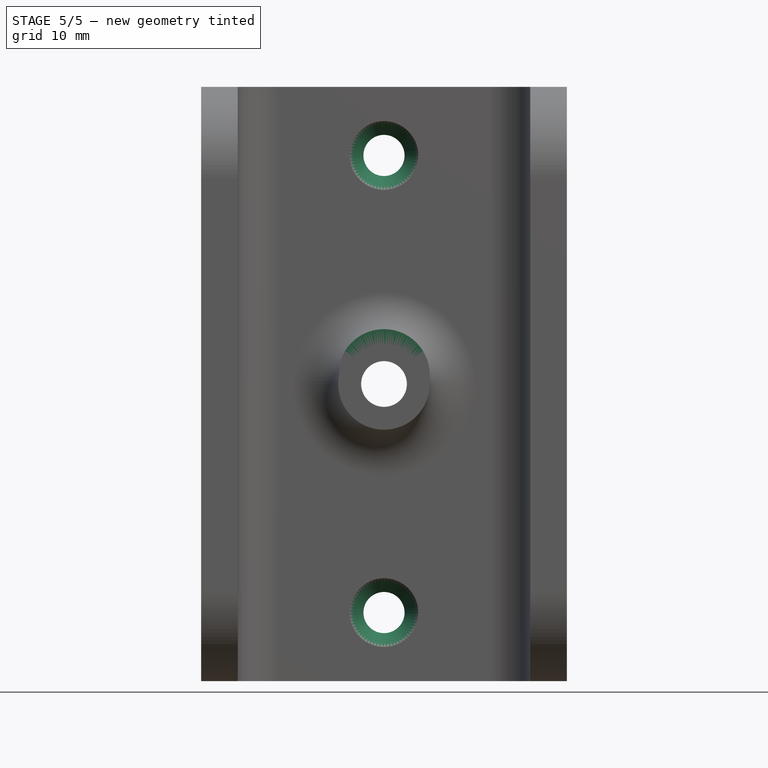
[diagram: stage 5 of 5 — front view after this stage's code; geometry added in this stage tinted green]
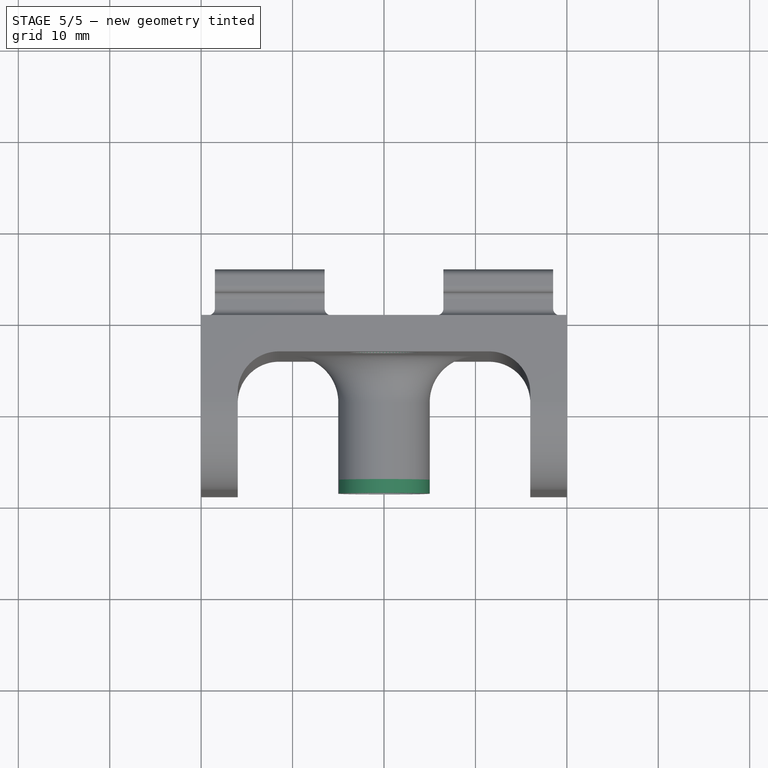
[diagram: stage 5 of 5 — top view after this stage's code; geometry added in this stage tinted green]
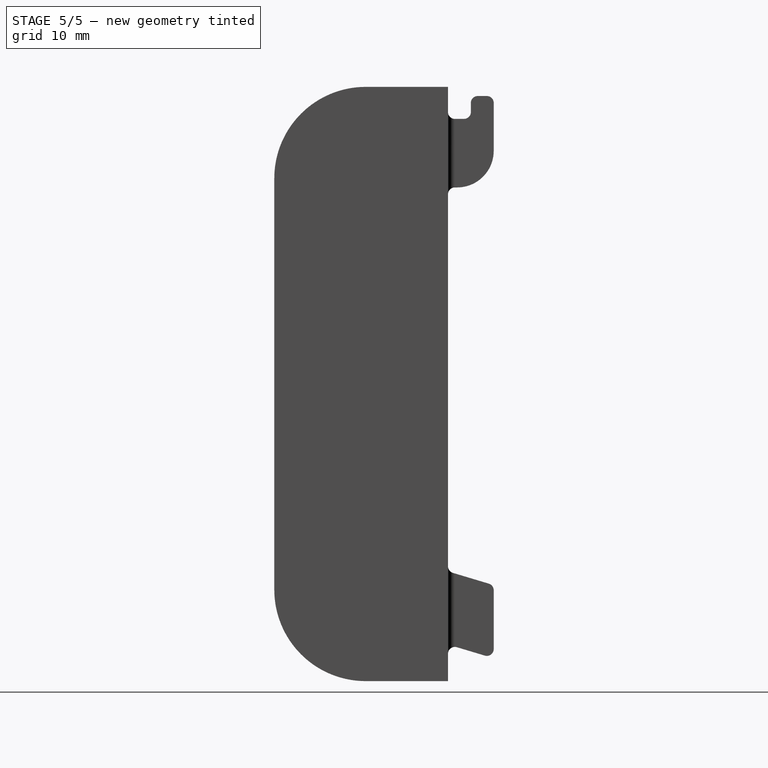
[diagram: stage 5 of 5 — right view after this stage's code; geometry added in this stage tinted green]
FEATURE [Sketcher::SketchObject] Sketch008
  ArcFitTolerance = 1e-06
  AttachmentSupport = -> [Mirrored]
  ExternalGeometry = -> [Mirrored]
  FullyConstrained = true
  MakeInternals = false
  MapMode = 5
  Placement = pos=(0,-19,0) rot=(1,0,0;1.5708rad)
  sketch-geometry (6):
    g0: ArcOfCircle CenterX=0 CenterY=0 CenterZ=0 NormalX=0 NormalY=0 NormalZ=1 AngleXU=0 Radius=5 StartAngle=0.201358 EndAngle=2.94023
    g1: ArcOfCircle CenterX=0 CenterY=1 CenterZ=0 NormalX=0 NormalY=0 NormalZ=1 AngleXU=0 Radius=5 StartAngle=6.08183 EndAngle=9.22342
    g2: LineSegment StartX=-4.89898 StartY=1 StartZ=0 EndX=-4.89898 EndY=2 EndZ=0
    g3: LineSegment StartX=4.89898 StartY=1 StartZ=0 EndX=4.89898 EndY=-2e-15 EndZ=0
    g4: GeomPoint X=0 Y=5 Z=0
    g5: GeomPoint X=0 Y=6 Z=0
  constraints (17):
    c: Coincident(g0,g-1)
    c: PointOnObject(g0,g-3)
    c: PointOnObject(g1,g-2)
    c: Coincident(g2,g0)
    c: Coincident(g2,g1)
    c: Coincident(g3,g0)
    c: Coincident(g3,g1)
    c: Vertical(g3)
    c: Vertical(g2)
    c: Horizontal(g0,g0)
    c: DistanceY(g-3,g0) = 1
    c: DistanceY(g2,g2) = 1
    c: PointOnObject(g4,g0)
    c: PointOnObject(g5,g1)
    c: Vertical(g4,g5)
    c: Vertical(g5,g0)
    c: Distance(g5,g4) = 1
FEATURE [PartDesign::Pad] Pad008
  BaseFeature = -> Mirrored
  Direction = (0,-1,2e-16)
  Length = 1.5
  Length2 = 10
  Profile = -> Sketch008
  ReferenceAxis = -> Sketch008 [N_Axis]
  Refine = true
  Reversed = true
  Suppressed = false
  Type = 0
FEATURE [Sketcher::SketchObject] Sketch009
  ArcFitTolerance = 1e-06
  ExternalGeometry = -> [Binder]
  FullyConstrained = true
  MakeInternals = false
  MapMode = 5
  Placement = pos=(0,0,0) rot=(0,0.707107,0.707107;3.14159rad)
  sketch-geometry (1):
    g0: Circle CenterX=0 CenterY=25 CenterZ=0 NormalX=0 NormalY=0 NormalZ=1 AngleXU=0 Radius=2.25
  constraints (2):
    c: Coincident(g0,g-3)
    c: Equal(g0,g-3)
FEATURE [PartDesign::Pocket] Pocket
  BaseFeature = -> Pad008
  Direction = (0,-1,2e-16)
  Length = 5
  Length2 = 5
  Profile = -> Sketch009
  ReferenceAxis = -> Sketch009 [N_Axis]
  Refine = true
  Suppressed = false
  Type = 2
FEATURE [PartDesign::Chamfer] Chamfer
  Angle = 45
  Base = -> Pocket [Edge104]
  BaseFeature = -> Pocket
  ChamferType = 0
  FlipDirection = false
  Refine = true
  Size = 1.5
  Size2 = 1
  SupportTransform = false
  Suppressed = false
  UseAllEdges = false
FEATURE [PartDesign::Mirrored] Mirrored001
  BaseFeature = -> Chamfer
  MirrorPlane = -> XY_Plane001
  Originals = -> [Pocket,Chamfer]
  Refine = true
  Suppressed = false
  TransformMode = 0
FEATURE [PartDesign::Body] Body001  label="holder"
  AllowCompound = false
  Group = -> [Binder,Sketch001,Pad001,Sketch003,Pad002,Fillet,Sketch004,Pad003,Fillet001,Fillet002,Pad004,Sketch005,Pad005,Sketch006,Pad006,Sketch007,Pad007,Fillet005,Fillet006,Mirrored,Sketch008,Pad008,Sketch009,Pocket,Chamfer,Mirrored001]
  Origin = -> Origin001
  Tip = -> Mirrored001
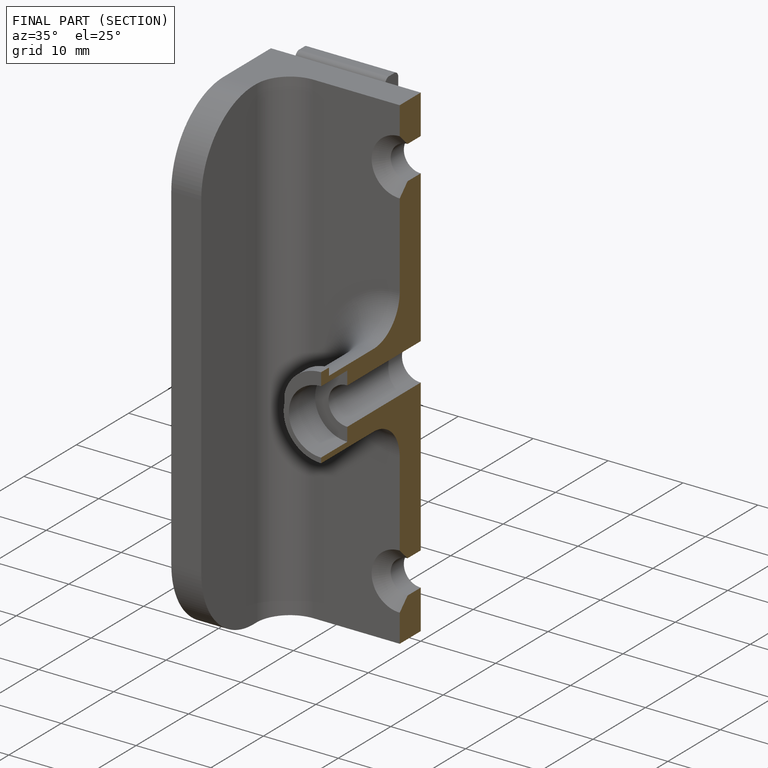
[diagram: finished part — half-section view (interior)]
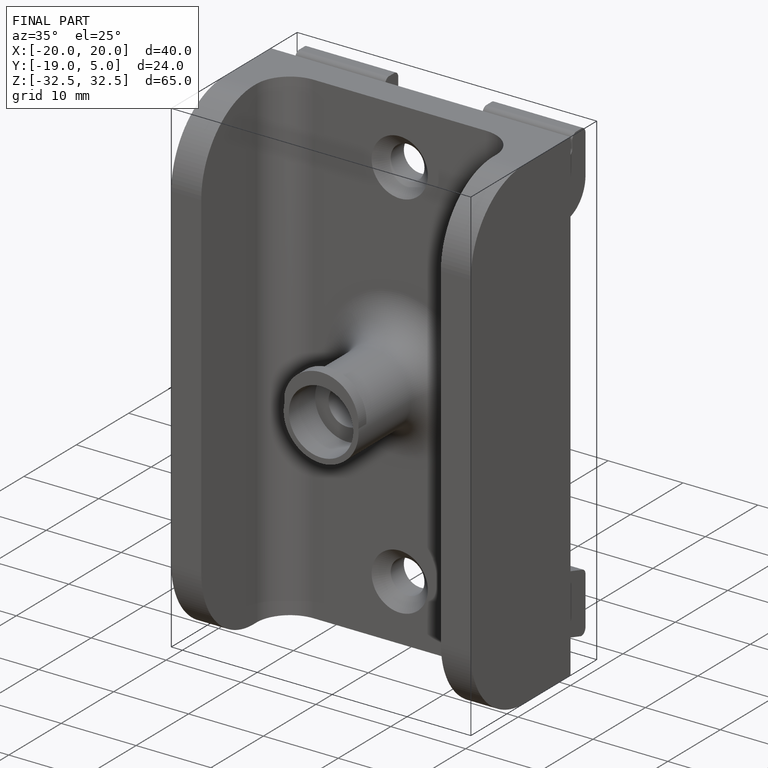
[diagram: finished part — iso view with bounding-box wireframe]
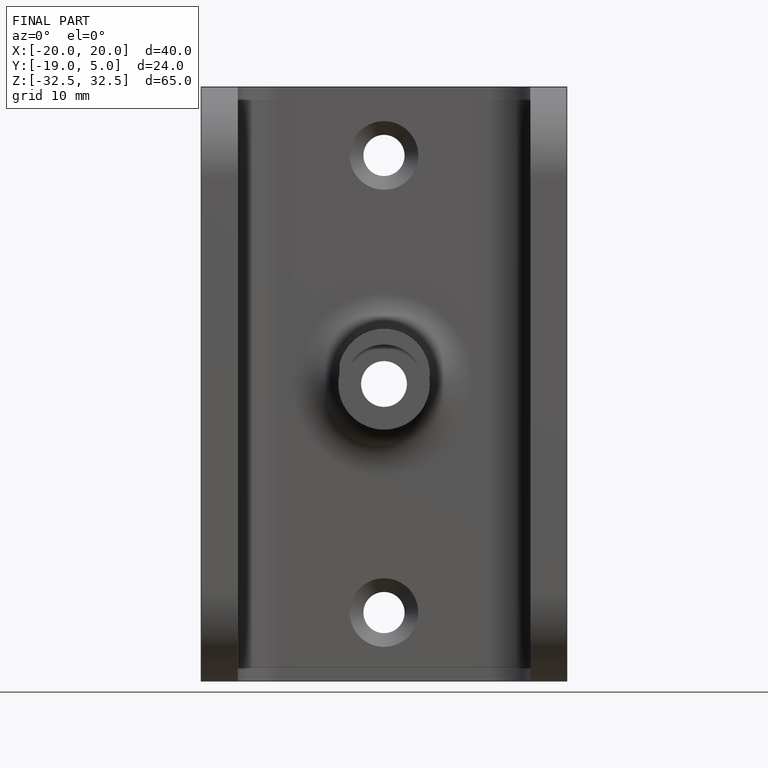
[diagram: finished part — front view with bounding-box wireframe]
